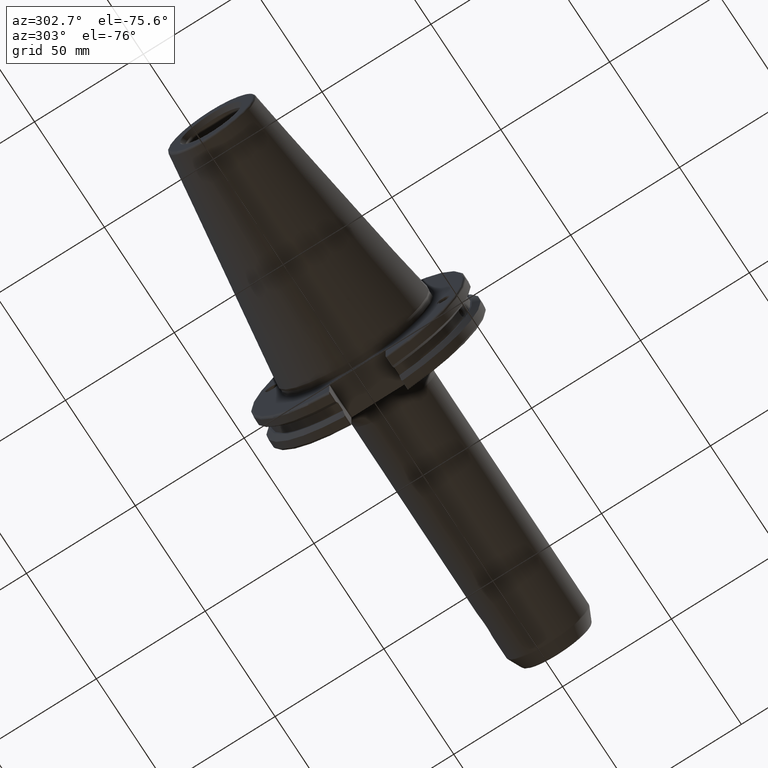
[diagram: clean part render]
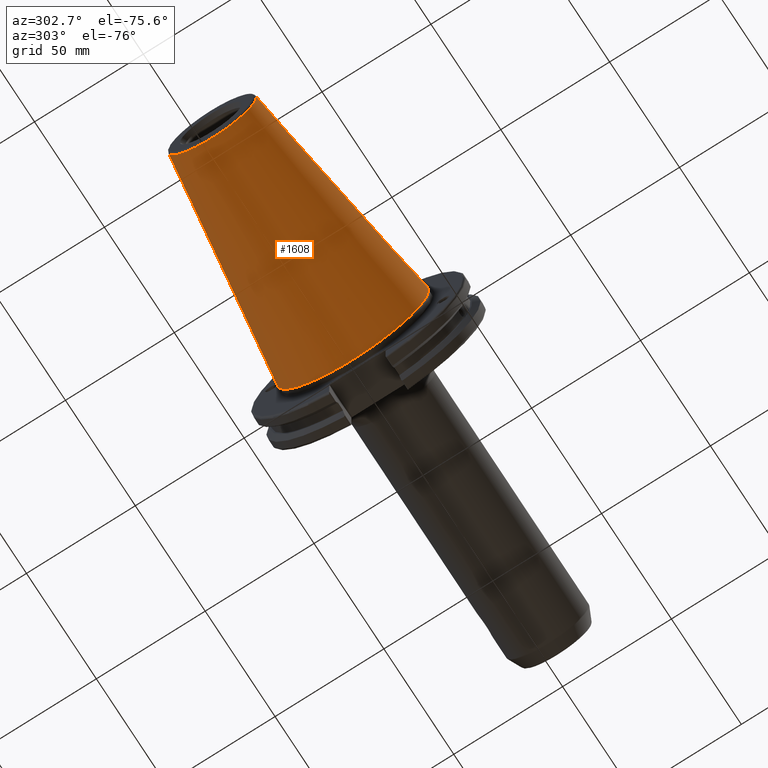
[diagram: same view with one face highlighted and labeled with its STEP entity id]
A machine part, auxiliary view. The second image highlights one B-rep face of the part: STEP entity #1608.
In plain terms, the highlighted conical surface has half-angle 8.297 deg.
Its self-contained STEP definition (entity closure, byte-faithful):
#73=CONICAL_SURFACE('',#1793,27.5166666666666,0.14481249823894);
#177=FACE_OUTER_BOUND('',#285,.T.);
#285=EDGE_LOOP('',(#1388,#1389,#1390,#1391,#1392));
#393=LINE('',#3241,#490);
#490=VECTOR('',#2183,27.5166666666666);
#575=CIRCLE('',#1787,20.233121911427);
#576=CIRCLE('',#1788,20.233121911427);
#580=CIRCLE('',#1794,34.925);
#782=VERTEX_POINT('',#3228);
#783=VERTEX_POINT('',#3229);
#786=VERTEX_POINT('',#3239);
#999=EDGE_CURVE('',#782,#783,#575,.T.);
#1000=EDGE_CURVE('',#783,#782,#576,.T.);
#1004=EDGE_CURVE('',#786,#786,#580,.T.);
#1005=EDGE_CURVE('',#786,#783,#393,.T.);
#1388=ORIENTED_EDGE('',*,*,#1004,.F.);
#1389=ORIENTED_EDGE('',*,*,#1005,.T.);
#1390=ORIENTED_EDGE('',*,*,#999,.F.);
#1391=ORIENTED_EDGE('',*,*,#1000,.F.);
#1392=ORIENTED_EDGE('',*,*,#1005,.F.);
#1608=ADVANCED_FACE('',(#177),#73,.T.);
#1787=AXIS2_PLACEMENT_3D('',#3230,#2167,#2168);
#1788=AXIS2_PLACEMENT_3D('',#3231,#2169,#2170);
#1793=AXIS2_PLACEMENT_3D('',#3238,#2179,#2180);
#1794=AXIS2_PLACEMENT_3D('',#3240,#2181,#2182);
#2167=DIRECTION('center_axis',(-1.,0.,0.));
#2168=DIRECTION('ref_axis',(0.,-1.,3.06161699786838E-17));
#2169=DIRECTION('center_axis',(-1.,0.,0.));
#2170=DIRECTION('ref_axis',(0.,-1.,3.06161699786838E-17));
#2179=DIRECTION('center_axis',(1.,0.,0.));
#2180=DIRECTION('ref_axis',(0.,1.,0.));
#2181=DIRECTION('center_axis',(1.,0.,0.));
#2182=DIRECTION('ref_axis',(0.,0.,-1.));
#2183=DIRECTION('',(-0.989532981063281,0.144306893071729,1.76724974695192E-17));
#3228=CARTESIAN_POINT('',(-100.744306893072,-2.47784279855872E-15,20.233121911427));
#3229=CARTESIAN_POINT('',(-100.744306893072,-20.233121911427,-2.47784279855872E-15));
#3230=CARTESIAN_POINT('Origin',(-100.744306893072,0.,-3.09730349819841E-15));
#3231=CARTESIAN_POINT('Origin',(-100.744306893072,0.,-3.09730349819841E-15));
#3238=CARTESIAN_POINT('Origin',(-50.8,0.,0.));
#3239=CARTESIAN_POINT('',(-8.88178419700125E-15,-34.925,-4.27707894602213E-15));
#3240=CARTESIAN_POINT('Origin',(0.,0.,0.));
#3241=CARTESIAN_POINT('',(-50.8,-27.5166666666666,-3.3698197756538E-15));